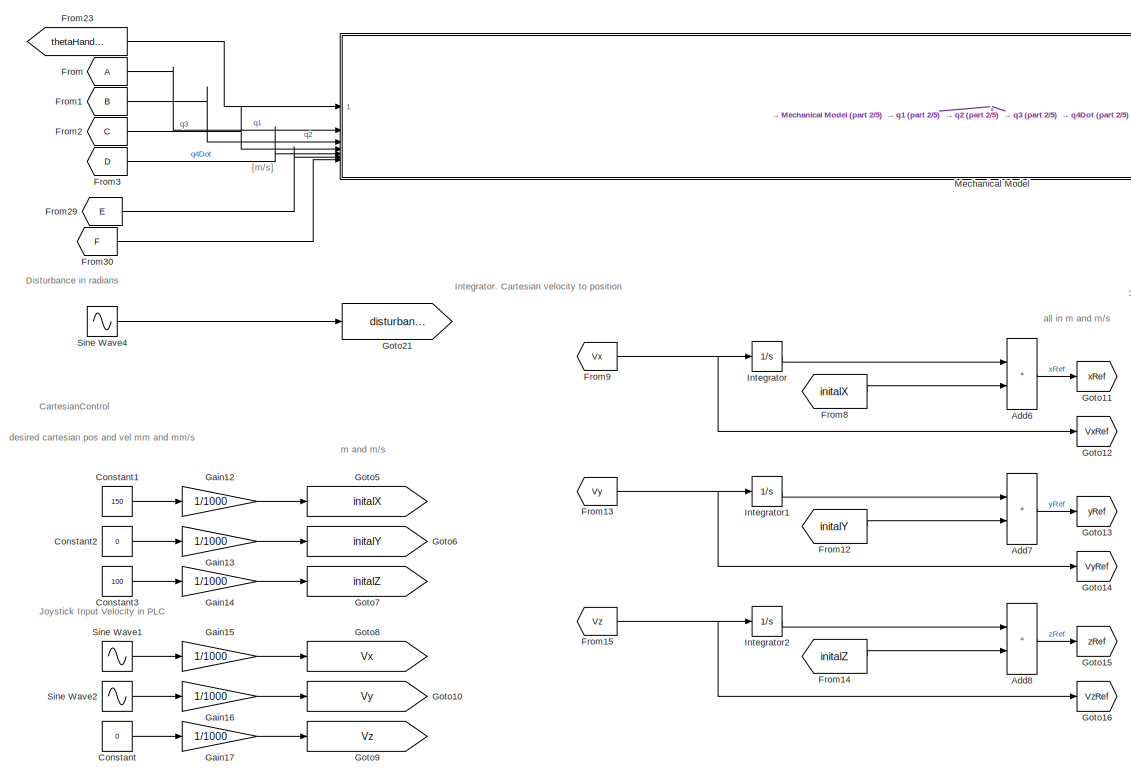
[diagram: root canvas - part 1/5, center side, full height]
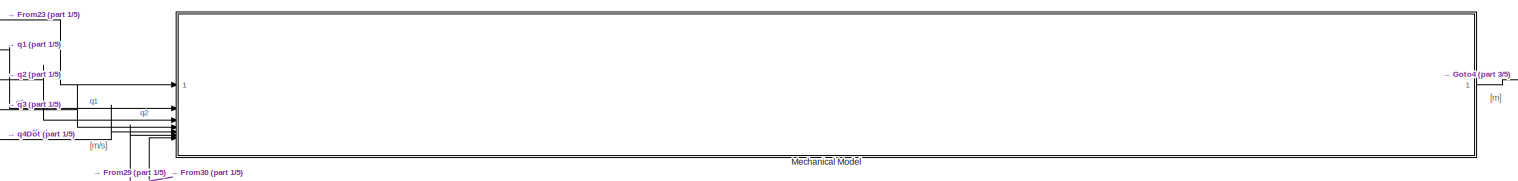
[diagram: root canvas - part 2/5, top right region]
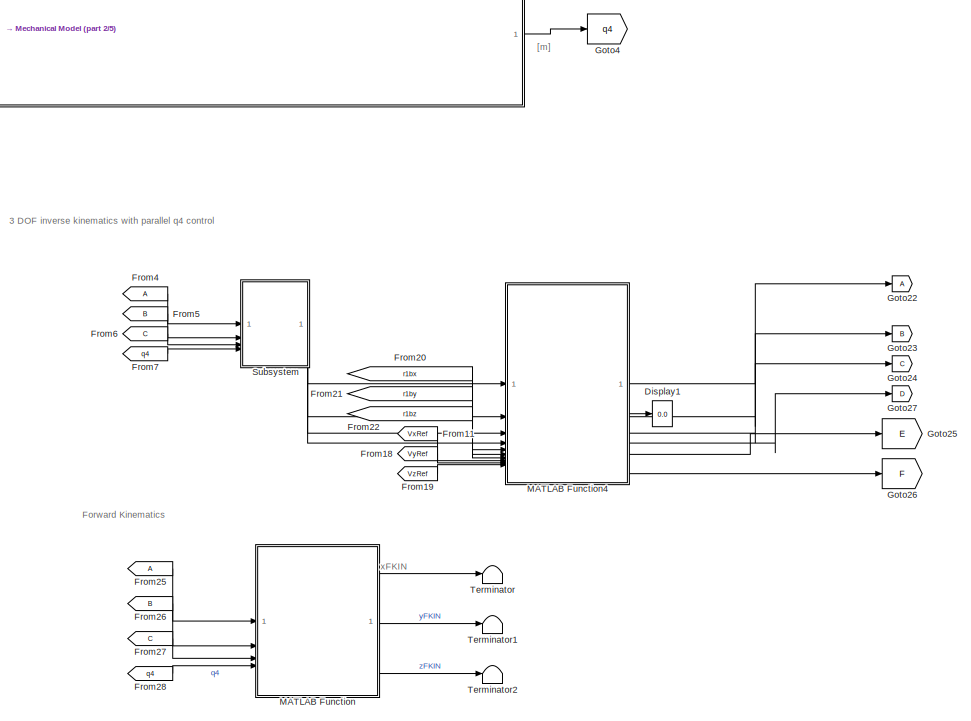
[diagram: root canvas - part 3/5, right side, full height]
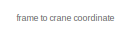
[diagram: root canvas - part 4/5, top left region]
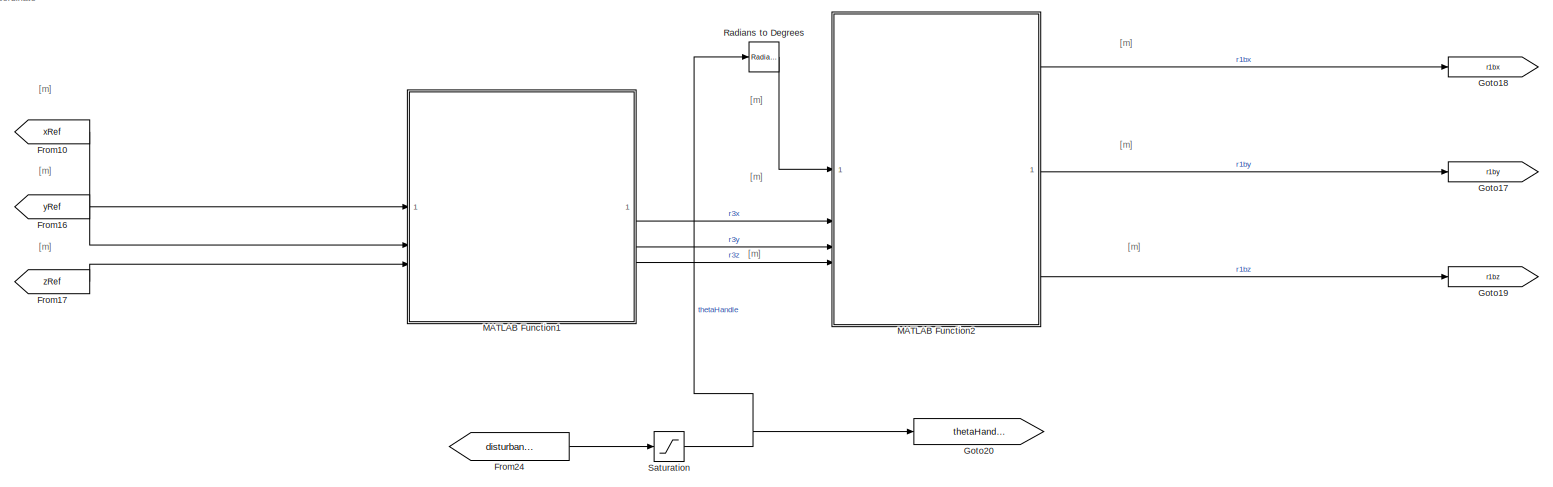
[diagram: root canvas - part 5/5, middle left region]
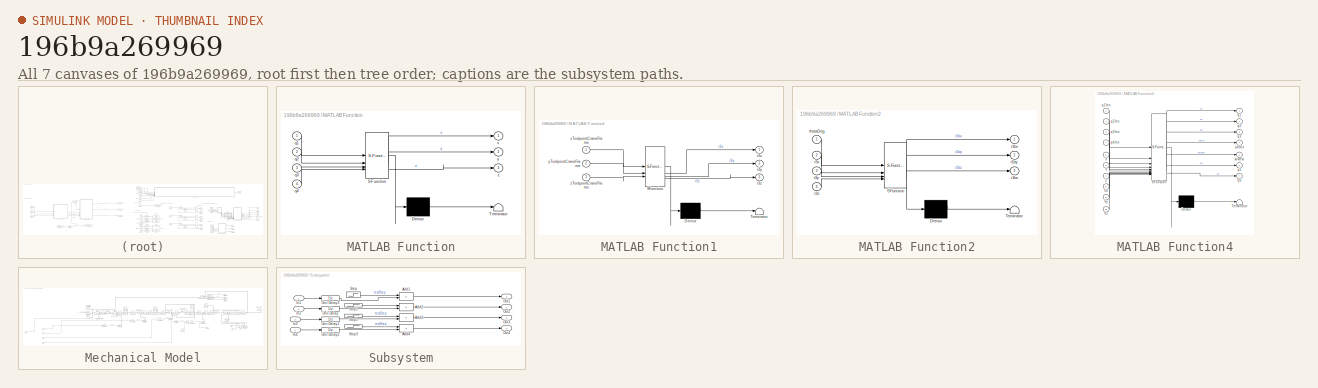
[diagram: thumbnail index - all 7 canvases of the model, root first then tree order]
MODEL slx_196b9a269969
KIND model
CONFIG AbsTol = auto
CONFIG EnableMultiTasking = off
CONFIG FixedStep = 0.001
CONFIG MaxStep = auto
CONFIG MinStep = auto
CONFIG RelTol = 1e-3
CONFIG SampleTimeConstraint = Unconstrained
CONFIG SolverName = FixedStepAuto
CONFIG StartTime = 0.0
CONFIG StopTime = 30
WORKSPACE source: MATLAB code (in-file)
WORKSPACE l1 = 156.9
WORKSPACE l2 = 27.45
WORKSPACE l3 = 179.42
WORKSPACE l4 = 26.86
WORKSPACE l5 = 167.25
WORKSPACE l6 = 1.75
WORKSPACE q1Min = -pi/2  (= -1.57079632679)
WORKSPACE q1Max = pi/2  (= 1.57079632679)
WORKSPACE q2Min = -1.2
WORKSPACE code: q2Max = 0.7;;
WORKSPACE q3Min = 0
WORKSPACE q3Max = 3.2
WORKSPACE q4Min = 0
WORKSPACE q4Max = 200
BLOCK [Sum] Add6
  IconShape = rectangular
BLOCK [Sum] Add7
  IconShape = rectangular
BLOCK [Sum] Add8
  IconShape = rectangular
BLOCK [Constant] Constant
  Value = 0
BLOCK [Constant] Constant1
  Value = 150
BLOCK [Constant] Constant2
  Value = 0
BLOCK [Constant] Constant3
  Value = 100
BLOCK [Display] Display1
  Decimation = 1
BLOCK [From] From
BLOCK [From] From1
  GotoTag = B
BLOCK [From] From10
  GotoTag = xRef
BLOCK [From] From11
  GotoTag = VxRef
BLOCK [From] From12
  GotoTag = initalY
BLOCK [From] From13
  GotoTag = Vy
BLOCK [From] From14
  GotoTag = initalZ
BLOCK [From] From15
  GotoTag = Vz
BLOCK [From] From16
  GotoTag = yRef
BLOCK [From] From17
  GotoTag = zRef
BLOCK [From] From18
  GotoTag = VyRef
BLOCK [From] From19
  GotoTag = VzRef
BLOCK [From] From2
  GotoTag = C
BLOCK [From] From20
  GotoTag = r1bx
BLOCK [From] From21
  GotoTag = r1by
BLOCK [From] From22
  GotoTag = r1bz
BLOCK [From] From23
  GotoTag = thetaHandle
BLOCK [From] From24
  GotoTag = disturbanceTilt
BLOCK [From] From25
BLOCK [From] From26
  GotoTag = B
BLOCK [From] From27
  GotoTag = C
BLOCK [From] From28
  GotoTag = q4
BLOCK [From] From29
  GotoTag = E
BLOCK [From] From3
  GotoTag = D
BLOCK [From] From30
  GotoTag = F
BLOCK [From] From4
BLOCK [From] From5
  GotoTag = B
BLOCK [From] From6
  GotoTag = C
BLOCK [From] From7
  GotoTag = q4
BLOCK [From] From8
  GotoTag = initalX
BLOCK [From] From9
  GotoTag = Vx
BLOCK [Gain] Gain12
  Gain = 1/1000
BLOCK [Gain] Gain13
  Gain = 1/1000
BLOCK [Gain] Gain14
  Gain = 1/1000
BLOCK [Gain] Gain15
  Gain = 1/1000
BLOCK [Gain] Gain16
  Gain = 1/1000
BLOCK [Gain] Gain17
  Gain = 1/1000
BLOCK [Goto] Goto10
  GotoTag = Vy
BLOCK [Goto] Goto11
  GotoTag = xRef
BLOCK [Goto] Goto12
  GotoTag = VxRef
BLOCK [Goto] Goto13
  GotoTag = yRef
BLOCK [Goto] Goto14
  GotoTag = VyRef
BLOCK [Goto] Goto15
  GotoTag = zRef
BLOCK [Goto] Goto16
  GotoTag = VzRef
BLOCK [Goto] Goto17
  GotoTag = r1by
BLOCK [Goto] Goto18
  GotoTag = r1bx
BLOCK [Goto] Goto19
  GotoTag = r1bz
BLOCK [Goto] Goto20
  GotoTag = thetaHandle
BLOCK [Goto] Goto21
  GotoTag = disturbanceTilt
BLOCK [Goto] Goto22
BLOCK [Goto] Goto23
  GotoTag = B
BLOCK [Goto] Goto24
  GotoTag = C
BLOCK [Goto] Goto25
  GotoTag = E
BLOCK [Goto] Goto26
  GotoTag = F
BLOCK [Goto] Goto27
  GotoTag = D
BLOCK [Goto] Goto4
  GotoTag = q4
BLOCK [Goto] Goto5
  GotoTag = initalX
BLOCK [Goto] Goto6
  GotoTag = initalY
BLOCK [Goto] Goto7
  GotoTag = initalZ
BLOCK [Goto] Goto8
  GotoTag = Vx
BLOCK [Goto] Goto9
  GotoTag = Vz
BLOCK [Integrator] Integrator
BLOCK [Integrator] Integrator1
BLOCK [Integrator] Integrator2
BLOCK [SubSystem] MATLAB Function
  ErrorFcn = Stateflow.Translate.translate
  LibrarySourceBlock = simulink/User-Defined\nFunctions/MATLAB Function
  PermitHierarchicalResolution = ExplicitOnly
  SFBlockType = MATLAB Function
  TreatAsAtomicUnit = on
BLOCK [Demux] MATLAB Function/ Demux 
  Outputs = 1
BLOCK [S-Function] MATLAB Function/ SFunction 
  EnableBusSupport = on
  FunctionName = sf_sfun
  PortCounts = [4 4]
  SFcnIsStateOwnerBlock = off
  SFunctionDeploymentMode = off
  Tag = Stateflow S-Function 2
BLOCK [Terminator] MATLAB Function/ Terminator 
BLOCK [Inport] MATLAB Function/q1
BLOCK [Inport] MATLAB Function/q2
  Port = 2
BLOCK [Inport] MATLAB Function/q3
  Port = 3
BLOCK [Inport] MATLAB Function/q4
  Port = 4
BLOCK [Outport] MATLAB Function/x
BLOCK [Outport] MATLAB Function/y
  Port = 2
BLOCK [Outport] MATLAB Function/z
  Port = 3
BLOCK [SubSystem] MATLAB Function1
  ErrorFcn = Stateflow.Translate.translate
  LibrarySourceBlock = simulink/User-Defined\nFunctions/MATLAB Function
  PermitHierarchicalResolution = ExplicitOnly
  SFBlockType = MATLAB Function
  TreatAsAtomicUnit = on
BLOCK [Demux] MATLAB Function1/ Demux 
  Outputs = 1
BLOCK [S-Function] MATLAB Function1/ SFunction 
  EnableBusSupport = on
  FunctionName = sf_sfun
  PortCounts = [3 4]
  SFcnIsStateOwnerBlock = off
  SFunctionDeploymentMode = off
  Tag = Stateflow S-Function 1
BLOCK [Terminator] MATLAB Function1/ Terminator 
BLOCK [Outport] MATLAB Function1/r3x
BLOCK [Outport] MATLAB Function1/r3y
  Port = 2
BLOCK [Outport] MATLAB Function1/r3z
  Port = 3
BLOCK [Inport] MATLAB Function1/xToolpointCraneFrame
BLOCK [Inport] MATLAB Function1/yToolpointCraneFrame
  Port = 2
BLOCK [Inport] MATLAB Function1/zToolpointCraneFrame
  Port = 3
BLOCK [SubSystem] MATLAB Function2
  ErrorFcn = Stateflow.Translate.translate
  LibrarySourceBlock = simulink/User-Defined\nFunctions/MATLAB Function
  PermitHierarchicalResolution = ExplicitOnly
  SFBlockType = MATLAB Function
  TreatAsAtomicUnit = on
BLOCK [Demux] MATLAB Function2/ Demux 
  Outputs = 1
BLOCK [S-Function] MATLAB Function2/ SFunction 
  EnableBusSupport = on
  FunctionName = sf_sfun
  PortCounts = [4 4]
  SFcnIsStateOwnerBlock = off
  SFunctionDeploymentMode = off
  Tag = Stateflow S-Function 3
BLOCK [Terminator] MATLAB Function2/ Terminator 
BLOCK [Outport] MATLAB Function2/r1bx
BLOCK [Outport] MATLAB Function2/r1by
  Port = 2
BLOCK [Outport] MATLAB Function2/r1bz
  Port = 3
BLOCK [Inport] MATLAB Function2/r3x
  Port = 2
BLOCK [Inport] MATLAB Function2/r3y
  Port = 3
BLOCK [Inport] MATLAB Function2/r3z
  Port = 4
BLOCK [Inport] MATLAB Function2/thetaDeg
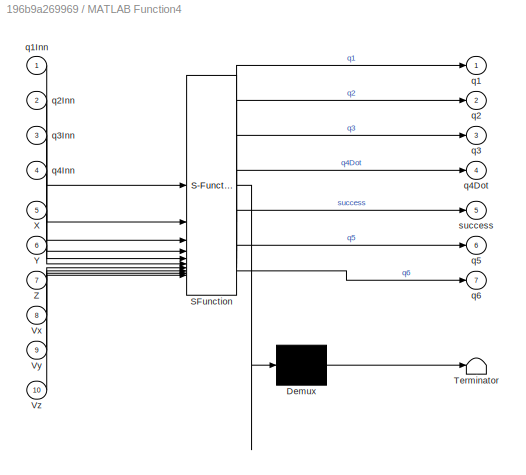
BLOCK [SubSystem] MATLAB Function4
  ErrorFcn = Stateflow.Translate.translate
  LibrarySourceBlock = simulink/User-Defined\nFunctions/MATLAB Function
  MinAlgLoopOccurrences = on
  PermitHierarchicalResolution = ExplicitOnly
  SFBlockType = MATLAB Function
  TreatAsAtomicUnit = on
BLOCK [Demux] MATLAB Function4/ Demux 
  Outputs = 1
BLOCK [S-Function] MATLAB Function4/ SFunction 
  EnableBusSupport = on
  FunctionName = sf_sfun
  PortCounts = [10 8]
  SFcnIsStateOwnerBlock = off
  SFunctionDeploymentMode = off
  Tag = Stateflow S-Function 5
BLOCK [Terminator] MATLAB Function4/ Terminator 
BLOCK [Inport] MATLAB Function4/Vx
  Port = 8
BLOCK [Inport] MATLAB Function4/Vy
  Port = 9
BLOCK [Inport] MATLAB Function4/Vz
  Port = 10
BLOCK [Inport] MATLAB Function4/X
  Port = 5
BLOCK [Inport] MATLAB Function4/Y
  Port = 6
BLOCK [Inport] MATLAB Function4/Z
  Port = 7
BLOCK [Outport] MATLAB Function4/q1
BLOCK [Inport] MATLAB Function4/q1Inn
BLOCK [Outport] MATLAB Function4/q2
  Port = 2
BLOCK [Inport] MATLAB Function4/q2Inn
  Port = 2
BLOCK [Outport] MATLAB Function4/q3
  Port = 3
BLOCK [Inport] MATLAB Function4/q3Inn
  Port = 3
BLOCK [Outport] MATLAB Function4/q4Dot
  Port = 4
BLOCK [Inport] MATLAB Function4/q4Inn
  Port = 4
BLOCK [Outport] MATLAB Function4/q5
  Port = 6
BLOCK [Outport] MATLAB Function4/q6
  Port = 7
BLOCK [Outport] MATLAB Function4/success
  Port = 5
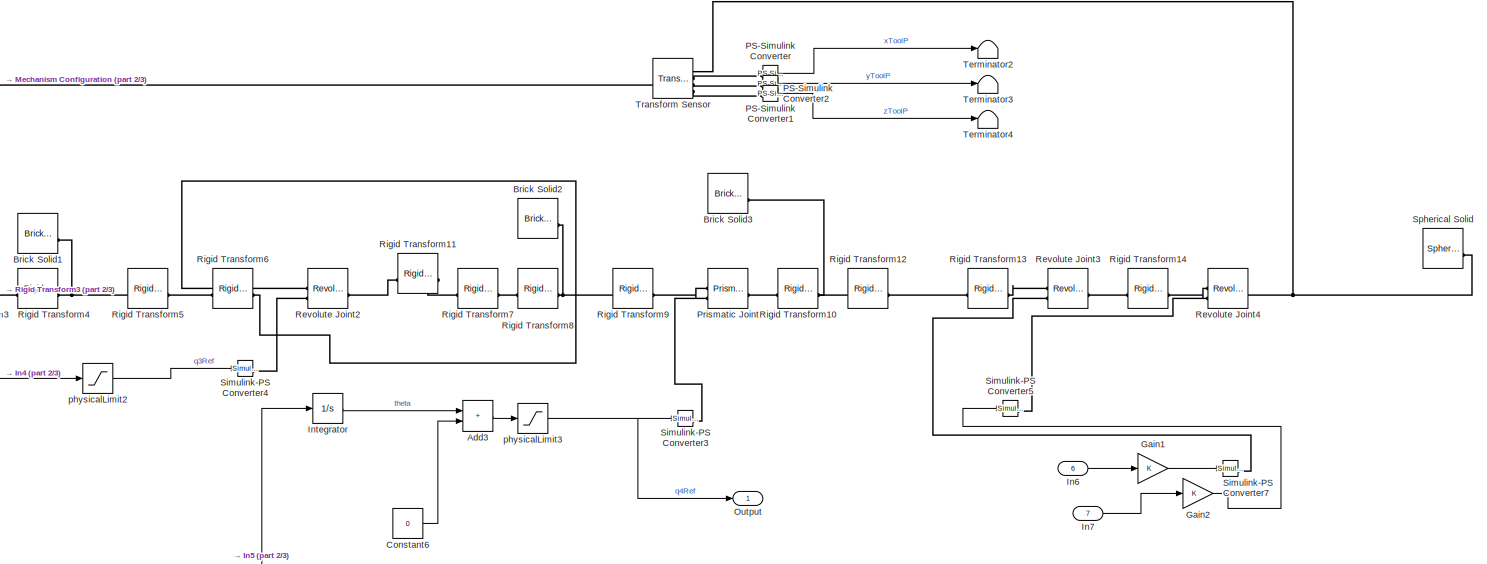
[diagram: Mechanical Model - part 1/3, middle right region]
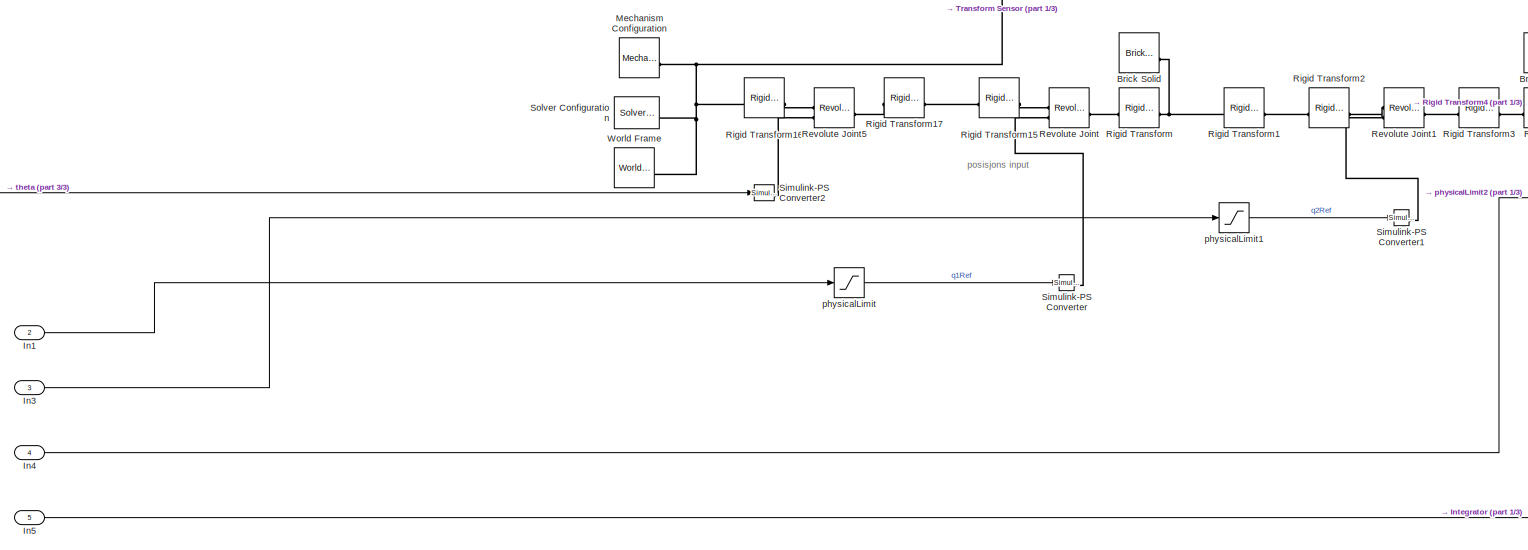
[diagram: Mechanical Model - part 2/3, middle left region]
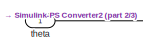
[diagram: Mechanical Model - part 3/3, bottom left region]
BLOCK [SubSystem] Mechanical Model
BLOCK [Sum] Mechanical Model/Add3
  IconShape = rectangular
BLOCK [Reference] Mechanical Model/Brick Solid  REF=sm_lib/Body Elements/Brick Solid
  SourceBlock = sm_lib/Body Elements/Brick Solid
  SourceType = Brick Solid
BLOCK [Reference] Mechanical Model/Brick Solid1  REF=sm_lib/Body Elements/Brick Solid
  SourceBlock = sm_lib/Body Elements/Brick Solid
  SourceType = Brick Solid
BLOCK [Reference] Mechanical Model/Brick Solid2  REF=sm_lib/Body Elements/Brick Solid
  SourceBlock = sm_lib/Body Elements/Brick Solid
  SourceType = Brick Solid
BLOCK [Reference] Mechanical Model/Brick Solid3  REF=sm_lib/Body Elements/Brick Solid
  SourceBlock = sm_lib/Body Elements/Brick Solid
  SourceType = Brick Solid
BLOCK [Constant] Mechanical Model/Constant6
  Value = 0
BLOCK [Gain] Mechanical Model/Gain1
BLOCK [Gain] Mechanical Model/Gain2
BLOCK [Inport] Mechanical Model/In1
  Port = 2
BLOCK [Inport] Mechanical Model/In3
  Port = 3
BLOCK [Inport] Mechanical Model/In4
  Port = 4
BLOCK [Inport] Mechanical Model/In5
  Port = 5
BLOCK [Inport] Mechanical Model/In6
  Port = 6
BLOCK [Inport] Mechanical Model/In7
  Port = 7
BLOCK [Integrator] Mechanical Model/Integrator
BLOCK [Reference] Mechanical Model/Mechanism Configuration  REF=sm_lib/Utilities/Mechanism
Configuration
  SourceBlock = sm_lib/Utilities/Mechanism\nConfiguration
  SourceType = Mechanism\nConfiguration
BLOCK [Outport] Mechanical Model/Output
BLOCK [Reference] Mechanical Model/PS-Simulink Converter  REF=nesl_utility/PS-Simulink
Converter
  SourceBlock = nesl_utility/PS-Simulink\nConverter
  SourceType = PS-Simulink\nConverter
BLOCK [Reference] Mechanical Model/PS-Simulink Converter1  REF=nesl_utility/PS-Simulink
Converter
  SourceBlock = nesl_utility/PS-Simulink\nConverter
  SourceType = PS-Simulink\nConverter
BLOCK [Reference] Mechanical Model/PS-Simulink Converter2  REF=nesl_utility/PS-Simulink
Converter
  SourceBlock = nesl_utility/PS-Simulink\nConverter
  SourceType = PS-Simulink\nConverter
BLOCK [Reference] Mechanical Model/Prismatic Joint  REF=sm_lib/Joints/Prismatic
Joint
  SourceBlock = sm_lib/Joints/Prismatic\nJoint
  SourceType = Prismatic\nJoint
BLOCK [Reference] Mechanical Model/Revolute Joint  REF=sm_lib/Joints/Revolute Joint
  SourceBlock = sm_lib/Joints/Revolute Joint
  SourceType = Revolute Joint
BLOCK [Reference] Mechanical Model/Revolute Joint1  REF=sm_lib/Joints/Revolute Joint
  SourceBlock = sm_lib/Joints/Revolute Joint
  SourceType = Revolute Joint
BLOCK [Reference] Mechanical Model/Revolute Joint2  REF=sm_lib/Joints/Revolute Joint
  SourceBlock = sm_lib/Joints/Revolute Joint
  SourceType = Revolute Joint
BLOCK [Reference] Mechanical Model/Revolute Joint3  REF=sm_lib/Joints/Revolute Joint
  SourceBlock = sm_lib/Joints/Revolute Joint
  SourceType = Revolute Joint
BLOCK [Reference] Mechanical Model/Revolute Joint4  REF=sm_lib/Joints/Revolute Joint
  SourceBlock = sm_lib/Joints/Revolute Joint
  SourceType = Revolute Joint
BLOCK [Reference] Mechanical Model/Revolute Joint5  REF=sm_lib/Joints/Revolute Joint
  SourceBlock = sm_lib/Joints/Revolute Joint
  SourceType = Revolute Joint
BLOCK [Reference] Mechanical Model/Rigid Transform  REF=sm_lib/Frames and
Transforms/Rigid
Transform
  SourceBlock = sm_lib/Frames and\nTransforms/Rigid\nTransform
  SourceType = Rigid\nTransform
BLOCK [Reference] Mechanical Model/Rigid Transform1  REF=sm_lib/Frames and
Transforms/Rigid
Transform
  SourceBlock = sm_lib/Frames and\nTransforms/Rigid\nTransform
  SourceType = Rigid\nTransform
BLOCK [Reference] Mechanical Model/Rigid Transform10  REF=sm_lib/Frames and
Transforms/Rigid
Transform
  SourceBlock = sm_lib/Frames and\nTransforms/Rigid\nTransform
  SourceType = Rigid\nTransform
BLOCK [Reference] Mechanical Model/Rigid Transform11  REF=sm_lib/Frames and
Transforms/Rigid
Transform
  SourceBlock = sm_lib/Frames and\nTransforms/Rigid\nTransform
  SourceType = Rigid\nTransform
BLOCK [Reference] Mechanical Model/Rigid Transform12  REF=sm_lib/Frames and
Transforms/Rigid
Transform
  SourceBlock = sm_lib/Frames and\nTransforms/Rigid\nTransform
  SourceType = Rigid\nTransform
BLOCK [Reference] Mechanical Model/Rigid Transform13  REF=sm_lib/Frames and
Transforms/Rigid
Transform
  SourceBlock = sm_lib/Frames and\nTransforms/Rigid\nTransform
  SourceType = Rigid\nTransform
BLOCK [Reference] Mechanical Model/Rigid Transform14  REF=sm_lib/Frames and
Transforms/Rigid
Transform
  SourceBlock = sm_lib/Frames and\nTransforms/Rigid\nTransform
  SourceType = Rigid\nTransform
BLOCK [Reference] Mechanical Model/Rigid Transform15  REF=sm_lib/Frames and
Transforms/Rigid
Transform
  SourceBlock = sm_lib/Frames and\nTransforms/Rigid\nTransform
  SourceType = Rigid\nTransform
BLOCK [Reference] Mechanical Model/Rigid Transform16  REF=sm_lib/Frames and
Transforms/Rigid
Transform
  SourceBlock = sm_lib/Frames and\nTransforms/Rigid\nTransform
  SourceType = Rigid\nTransform
BLOCK [Reference] Mechanical Model/Rigid Transform17  REF=sm_lib/Frames and
Transforms/Rigid
Transform
  SourceBlock = sm_lib/Frames and\nTransforms/Rigid\nTransform
  SourceType = Rigid\nTransform
BLOCK [Reference] Mechanical Model/Rigid Transform2  REF=sm_lib/Frames and
Transforms/Rigid
Transform
  SourceBlock = sm_lib/Frames and\nTransforms/Rigid\nTransform
  SourceType = Rigid\nTransform
BLOCK [Reference] Mechanical Model/Rigid Transform3  REF=sm_lib/Frames and
Transforms/Rigid
Transform
  SourceBlock = sm_lib/Frames and\nTransforms/Rigid\nTransform
  SourceType = Rigid\nTransform
BLOCK [Reference] Mechanical Model/Rigid Transform4  REF=sm_lib/Frames and
Transforms/Rigid
Transform
  SourceBlock = sm_lib/Frames and\nTransforms/Rigid\nTransform
  SourceType = Rigid\nTransform
BLOCK [Reference] Mechanical Model/Rigid Transform5  REF=sm_lib/Frames and
Transforms/Rigid
Transform
  SourceBlock = sm_lib/Frames and\nTransforms/Rigid\nTransform
  SourceType = Rigid\nTransform
BLOCK [Reference] Mechanical Model/Rigid Transform6  REF=sm_lib/Frames and
Transforms/Rigid
Transform
  SourceBlock = sm_lib/Frames and\nTransforms/Rigid\nTransform
  SourceType = Rigid\nTransform
BLOCK [Reference] Mechanical Model/Rigid Transform7  REF=sm_lib/Frames and
Transforms/Rigid
Transform
  SourceBlock = sm_lib/Frames and\nTransforms/Rigid\nTransform
  SourceType = Rigid\nTransform
BLOCK [Reference] Mechanical Model/Rigid Transform8  REF=sm_lib/Frames and
Transforms/Rigid
Transform
  SourceBlock = sm_lib/Frames and\nTransforms/Rigid\nTransform
  SourceType = Rigid\nTransform
BLOCK [Reference] Mechanical Model/Rigid Transform9  REF=sm_lib/Frames and
Transforms/Rigid
Transform
  SourceBlock = sm_lib/Frames and\nTransforms/Rigid\nTransform
  SourceType = Rigid\nTransform
BLOCK [Reference] Mechanical Model/Simulink-PS Converter  REF=nesl_utility/Simulink-PS
Converter
  SourceBlock = nesl_utility/Simulink-PS\nConverter
  SourceType = Simulink-PS\nConverter
BLOCK [Reference] Mechanical Model/Simulink-PS Converter1  REF=nesl_utility/Simulink-PS
Converter
  SourceBlock = nesl_utility/Simulink-PS\nConverter
  SourceType = Simulink-PS\nConverter
BLOCK [Reference] Mechanical Model/Simulink-PS Converter2  REF=nesl_utility/Simulink-PS
Converter
  SourceBlock = nesl_utility/Simulink-PS\nConverter
  SourceType = Simulink-PS\nConverter
BLOCK [Reference] Mechanical Model/Simulink-PS Converter3  REF=nesl_utility/Simulink-PS
Converter
  SourceBlock = nesl_utility/Simulink-PS\nConverter
  SourceType = Simulink-PS\nConverter
BLOCK [Reference] Mechanical Model/Simulink-PS Converter4  REF=nesl_utility/Simulink-PS
Converter
  SourceBlock = nesl_utility/Simulink-PS\nConverter
  SourceType = Simulink-PS\nConverter
BLOCK [Reference] Mechanical Model/Simulink-PS Converter5  REF=nesl_utility/Simulink-PS
Converter
  SourceBlock = nesl_utility/Simulink-PS\nConverter
  SourceType = Simulink-PS\nConverter
BLOCK [Reference] Mechanical Model/Simulink-PS Converter7  REF=nesl_utility/Simulink-PS
Converter
  SourceBlock = nesl_utility/Simulink-PS\nConverter
  SourceType = Simulink-PS\nConverter
BLOCK [Reference] Mechanical Model/Solver Configuration  REF=nesl_utility/Solver
Configuration
  SourceBlock = nesl_utility/Solver\nConfiguration
  SourceType = Solver\nConfiguration
BLOCK [Reference] Mechanical Model/Spherical Solid  REF=sm_lib/Body Elements/Spherical Solid
  SourceBlock = sm_lib/Body Elements/Spherical Solid
  SourceType = Spherical Solid
BLOCK [Terminator] Mechanical Model/Terminator2
BLOCK [Terminator] Mechanical Model/Terminator3
BLOCK [Terminator] Mechanical Model/Terminator4
BLOCK [Reference] Mechanical Model/Transform Sensor  REF=sm_lib/Frames and
Transforms/Transform
Sensor
  SourceBlock = sm_lib/Frames and\nTransforms/Transform\nSensor
  SourceType = Transform\nSensor
BLOCK [Reference] Mechanical Model/World Frame  REF=sm_lib/Frames and
Transforms/World Frame
  SourceBlock = sm_lib/Frames and\nTransforms/World Frame
  SourceType = World Frame
BLOCK [Saturate] Mechanical Model/physicalLimit
  LowerLimit = q1Min
  UpperLimit = q1Max
BLOCK [Saturate] Mechanical Model/physicalLimit1
  LowerLimit = q2Min
  UpperLimit = q2Max
BLOCK [Saturate] Mechanical Model/physicalLimit2
  LowerLimit = q3Min
  UpperLimit = q3Max
BLOCK [Saturate] Mechanical Model/physicalLimit3
  LowerLimit = q4Min/1000
  UpperLimit = q4Max/1000
BLOCK [Inport] Mechanical Model/theta
BLOCK [Reference] Radians to Degrees  REF=simulink_extras/Transformations/Radians
to Degrees
  SourceBlock = simulink_extras/Transformations/Radians\nto Degrees
  SourceType = RadiansToDegrees
BLOCK [Saturate] Saturation
  LowerLimit = 0
  UpperLimit = 0.26
BLOCK [Sin] Sine Wave1
  Amplitude = 50
  Frequency = .3
  SampleTime = 0
BLOCK [Sin] Sine Wave2
  Amplitude = 20
  Frequency = .5
  SampleTime = 0
BLOCK [Sin] Sine Wave4
  Amplitude = 0.2
  SampleTime = 0
BLOCK [SubSystem] Subsystem
BLOCK [Sum] Subsystem/Add1
  IconShape = rectangular
BLOCK [Sum] Subsystem/Add2
  IconShape = rectangular
BLOCK [Sum] Subsystem/Add3
  IconShape = rectangular
BLOCK [Sum] Subsystem/Add4
  IconShape = rectangular
BLOCK [Inport] Subsystem/In1
BLOCK [Inport] Subsystem/In2
  Port = 2
BLOCK [Inport] Subsystem/In3
  Port = 3
BLOCK [Inport] Subsystem/In4
  Port = 4
BLOCK [Outport] Subsystem/Out1
BLOCK [Outport] Subsystem/Out2
  Port = 2
BLOCK [Outport] Subsystem/Out3
  Port = 3
BLOCK [Outport] Subsystem/Out4
  Port = 4
BLOCK [Step] Subsystem/Step
  After = 0
  SampleTime = 0
  Time = 0.0001
BLOCK [Step] Subsystem/Step1
  After = 0
  Before = -pi/4
  SampleTime = 0
  Time = 0.0001
BLOCK [Step] Subsystem/Step2
  After = 0
  Before = pi/2
  SampleTime = 0
  Time = 0.0001
BLOCK [Step] Subsystem/Step3
  After = 0
  Before = 0.06
  SampleTime = 0
  Time = 0.0001
BLOCK [UnitDelay] Subsystem/Unit Delay
  HasFrameUpgradeWarning = on
  SampleTime = -1
BLOCK [UnitDelay] Subsystem/Unit Delay1
  HasFrameUpgradeWarning = on
  InitialCondition = 1
  SampleTime = -1
BLOCK [UnitDelay] Subsystem/Unit Delay2
  HasFrameUpgradeWarning = on
  SampleTime = -1
BLOCK [UnitDelay] Subsystem/Unit Delay3
  HasFrameUpgradeWarning = on
  SampleTime = -1
BLOCK [Terminator] Terminator
BLOCK [Terminator] Terminator1
BLOCK [Terminator] Terminator2
ANNOTATION (root): 3 DOF inverse kinematics with parallel q4 control
ANNOTATION (root): CartesianControl
ANNOTATION (root): Disturbance in radians
ANNOTATION (root): Forward Kinematics
ANNOTATION (root): Integrator. Cartesian velocity to position
ANNOTATION (root): Joystick Input Velocity in PLC
ANNOTATION (root): [m/s]
ANNOTATION (root): [m]
ANNOTATION (root): all in m and m/s
ANNOTATION (root): desired cartesian pos and vel mm and mm/s
ANNOTATION (root): frame to crane coordinate
ANNOTATION (root): m and m/s
ANNOTATION (root): xFKIN
ANNOTATION Mechanical Model: posisjons input
LINE Add6:1 -> Goto11:1
LINE Add7:1 -> Goto13:1
LINE Add8:1 -> Goto15:1
LINE Constant1:1 -> Gain12:1
LINE Constant2:1 -> Gain13:1
LINE Constant3:1 -> Gain14:1
LINE Constant:1 -> Gain17:1
LINE From10:1 -> MATLAB Function1:1
LINE From11:1 -> MATLAB Function4:8
LINE From12:1 -> Add7:2
NET From13:1 -> Goto14:1, Integrator1:1
LINE From14:1 -> Add8:2
NET From15:1 -> Goto16:1, Integrator2:1
LINE From16:1 -> MATLAB Function1:2
LINE From17:1 -> MATLAB Function1:3
LINE From18:1 -> MATLAB Function4:9
LINE From19:1 -> MATLAB Function4:10
LINE From1:1 -> Mechanical Model:3
LINE From20:1 -> MATLAB Function4:5
LINE From21:1 -> MATLAB Function4:6
LINE From22:1 -> MATLAB Function4:7
LINE From23:1 -> Mechanical Model:1
LINE From24:1 -> Saturation:1
LINE From25:1 -> MATLAB Function:1
LINE From26:1 -> MATLAB Function:2
LINE From27:1 -> MATLAB Function:3
LINE From28:1 -> MATLAB Function:4
LINE From29:1 -> Mechanical Model:6
LINE From2:1 -> Mechanical Model:4
LINE From30:1 -> Mechanical Model:7
LINE From3:1 -> Mechanical Model:5
LINE From4:1 -> Subsystem:1
LINE From5:1 -> Subsystem:2
LINE From6:1 -> Subsystem:3
LINE From7:1 -> Subsystem:4
LINE From8:1 -> Add6:2
NET From9:1 -> Goto12:1, Integrator:1
LINE From:1 -> Mechanical Model:2
LINE Gain12:1 -> Goto5:1
LINE Gain13:1 -> Goto6:1
LINE Gain14:1 -> Goto7:1
LINE Gain15:1 -> Goto8:1
LINE Gain16:1 -> Goto10:1
LINE Gain17:1 -> Goto9:1
LINE Integrator1:1 -> Add7:1
LINE Integrator2:1 -> Add8:1
LINE Integrator:1 -> Add6:1
LINE MATLAB Function1:1 -> MATLAB Function2:2
LINE MATLAB Function1:2 -> MATLAB Function2:3
LINE MATLAB Function1:3 -> MATLAB Function2:4
LINE MATLAB Function2:1 -> Goto18:1
LINE MATLAB Function2:2 -> Goto17:1
LINE MATLAB Function2:3 -> Goto19:1
LINE MATLAB Function4:1 -> Goto22:1
LINE MATLAB Function4:2 -> Goto23:1
LINE MATLAB Function4:3 -> Goto24:1
LINE MATLAB Function4:4 -> Goto27:1
LINE MATLAB Function4:5 -> Display1:1
LINE MATLAB Function4:6 -> Goto25:1
LINE MATLAB Function4:7 -> Goto26:1
LINE MATLAB Function:1 -> Terminator:1
LINE MATLAB Function:2 -> Terminator1:1
LINE MATLAB Function:3 -> Terminator2:1
LINE Mechanical Model/Add3:1 -> Mechanical Model/physicalLimit3:1
LINE Mechanical Model/Constant6:1 -> Mechanical Model/Add3:2
LINE Mechanical Model/Gain1:1 -> Mechanical Model/Simulink-PS Converter7:1
LINE Mechanical Model/Gain2:1 -> Mechanical Model/Simulink-PS Converter5:1
LINE Mechanical Model/In1:1 -> Mechanical Model/physicalLimit:1
LINE Mechanical Model/In3:1 -> Mechanical Model/physicalLimit1:1
LINE Mechanical Model/In4:1 -> Mechanical Model/physicalLimit2:1
LINE Mechanical Model/In5:1 -> Mechanical Model/Integrator:1
LINE Mechanical Model/In6:1 -> Mechanical Model/Gain1:1
LINE Mechanical Model/In7:1 -> Mechanical Model/Gain2:1
LINE Mechanical Model/Integrator:1 -> Mechanical Model/Add3:1
LINE Mechanical Model/PS-Simulink Converter1:1 -> Mechanical Model/Terminator3:1
LINE Mechanical Model/PS-Simulink Converter2:1 -> Mechanical Model/Terminator4:1
LINE Mechanical Model/PS-Simulink Converter:1 -> Mechanical Model/Terminator2:1
LINE Mechanical Model/physicalLimit1:1 -> Mechanical Model/Simulink-PS Converter1:1
LINE Mechanical Model/physicalLimit2:1 -> Mechanical Model/Simulink-PS Converter4:1
NET Mechanical Model/physicalLimit3:1 -> Mechanical Model/Output:1, Mechanical Model/Simulink-PS Converter3:1
LINE Mechanical Model/physicalLimit:1 -> Mechanical Model/Simulink-PS Converter:1
LINE Mechanical Model/theta:1 -> Mechanical Model/Simulink-PS Converter2:1
LINE Mechanical Model:1 -> Goto4:1
LINE Radians to Degrees:1 -> MATLAB Function2:1
NET Saturation:1 -> Goto20:1, Radians to Degrees:1
LINE Sine Wave1:1 -> Gain15:1
LINE Sine Wave2:1 -> Gain16:1
LINE Sine Wave4:1 -> Goto21:1
LINE Subsystem/Add1:1 -> Subsystem/Out1:1
LINE Subsystem/Add2:1 -> Subsystem/Out2:1
LINE Subsystem/Add3:1 -> Subsystem/Out3:1
LINE Subsystem/Add4:1 -> Subsystem/Out4:1
LINE Subsystem/In1:1 -> Subsystem/Unit Delay3:1
LINE Subsystem/In2:1 -> Subsystem/Unit Delay:1
LINE Subsystem/In3:1 -> Subsystem/Unit Delay1:1
LINE Subsystem/In4:1 -> Subsystem/Unit Delay2:1
LINE Subsystem/Step1:1 -> Subsystem/Add2:1
LINE Subsystem/Step2:1 -> Subsystem/Add3:1
LINE Subsystem/Step3:1 -> Subsystem/Add4:1
LINE Subsystem/Step:1 -> Subsystem/Add1:1
LINE Subsystem/Unit Delay1:1 -> Subsystem/Add3:2
LINE Subsystem/Unit Delay2:1 -> Subsystem/Add4:2
LINE Subsystem/Unit Delay3:1 -> Subsystem/Add1:2
LINE Subsystem/Unit Delay:1 -> Subsystem/Add2:2
LINE Subsystem:1 -> MATLAB Function4:1
LINE Subsystem:2 -> MATLAB Function4:2
LINE Subsystem:3 -> MATLAB Function4:3
LINE Subsystem:4 -> MATLAB Function4:4
PNET net1: Mechanical Model/Brick Solid1:RConn1 -- Mechanical Model/Rigid Transform4:RConn1 -- Mechanical Model/Rigid Transform5:LConn1
PNET net2: Mechanical Model/Brick Solid2:RConn1 -- Mechanical Model/Rigid Transform8:RConn1 -- Mechanical Model/Rigid Transform9:LConn1
PNET net3: Mechanical Model/Brick Solid3:RConn1 -- Mechanical Model/Rigid Transform10:RConn1 -- Mechanical Model/Rigid Transform12:LConn1
PNET net4: Mechanical Model/Brick Solid:RConn1 -- Mechanical Model/Rigid Transform1:LConn1 -- Mechanical Model/Rigid Transform:RConn1
PNET net5: Mechanical Model/Mechanism Configuration:RConn1 -- Mechanical Model/Rigid Transform16:LConn1 -- Mechanical Model/Solver Configuration:RConn1 -- Mechanical Model/Transform Sensor:LConn1 -- Mechanical Model/World Frame:RConn1
PLINE Mechanical Model/PS-Simulink Converter1:LConn1 -- Mechanical Model/Transform Sensor:RConn3
PLINE Mechanical Model/PS-Simulink Converter2:LConn1 -- Mechanical Model/Transform Sensor:RConn4
PLINE Mechanical Model/PS-Simulink Converter:LConn1 -- Mechanical Model/Transform Sensor:RConn2
PLINE Mechanical Model/Prismatic Joint:LConn1 -- Mechanical Model/Rigid Transform9:RConn1
PLINE Mechanical Model/Prismatic Joint:LConn2 -- Mechanical Model/Simulink-PS Converter3:RConn1
PLINE Mechanical Model/Prismatic Joint:RConn1 -- Mechanical Model/Rigid Transform10:LConn1
PLINE Mechanical Model/Revolute Joint1:LConn1 -- Mechanical Model/Rigid Transform2:RConn1
PLINE Mechanical Model/Revolute Joint1:LConn2 -- Mechanical Model/Simulink-PS Converter1:RConn1
PLINE Mechanical Model/Revolute Joint1:RConn1 -- Mechanical Model/Rigid Transform3:LConn1
PLINE Mechanical Model/Revolute Joint2:LConn1 -- Mechanical Model/Rigid Transform6:RConn1
PLINE Mechanical Model/Revolute Joint2:LConn2 -- Mechanical Model/Simulink-PS Converter4:RConn1
PLINE Mechanical Model/Revolute Joint2:RConn1 -- Mechanical Model/Rigid Transform11:LConn1
PLINE Mechanical Model/Revolute Joint3:LConn1 -- Mechanical Model/Rigid Transform13:RConn1
PLINE Mechanical Model/Revolute Joint3:LConn2 -- Mechanical Model/Simulink-PS Converter7:RConn1
PLINE Mechanical Model/Revolute Joint3:RConn1 -- Mechanical Model/Rigid Transform14:LConn1
PLINE Mechanical Model/Revolute Joint4:LConn1 -- Mechanical Model/Rigid Transform14:RConn1
PLINE Mechanical Model/Revolute Joint4:LConn2 -- Mechanical Model/Simulink-PS Converter5:RConn1
PNET net6: Mechanical Model/Revolute Joint4:RConn1 -- Mechanical Model/Spherical Solid:RConn1 -- Mechanical Model/Transform Sensor:RConn1
PLINE Mechanical Model/Revolute Joint5:LConn1 -- Mechanical Model/Rigid Transform16:RConn1
PLINE Mechanical Model/Revolute Joint5:LConn2 -- Mechanical Model/Simulink-PS Converter2:RConn1
PLINE Mechanical Model/Revolute Joint5:RConn1 -- Mechanical Model/Rigid Transform17:LConn1
PLINE Mechanical Model/Revolute Joint:LConn1 -- Mechanical Model/Rigid Transform15:RConn1
PLINE Mechanical Model/Revolute Joint:LConn2 -- Mechanical Model/Simulink-PS Converter:RConn1
PLINE Mechanical Model/Revolute Joint:RConn1 -- Mechanical Model/Rigid Transform:LConn1
PLINE Mechanical Model/Rigid Transform11:RConn1 -- Mechanical Model/Rigid Transform7:LConn1
PLINE Mechanical Model/Rigid Transform12:RConn1 -- Mechanical Model/Rigid Transform13:LConn1
PLINE Mechanical Model/Rigid Transform15:LConn1 -- Mechanical Model/Rigid Transform17:RConn1
PLINE Mechanical Model/Rigid Transform1:RConn1 -- Mechanical Model/Rigid Transform2:LConn1
PLINE Mechanical Model/Rigid Transform3:RConn1 -- Mechanical Model/Rigid Transform4:LConn1
PLINE Mechanical Model/Rigid Transform5:RConn1 -- Mechanical Model/Rigid Transform6:LConn1
PLINE Mechanical Model/Rigid Transform7:RConn1 -- Mechanical Model/Rigid Transform8:LConn1
note: NET lines group one-source signal fan-out (src -> all destinations, sorted); 1:1 wires keep LINE; PNET lines group multi-terminal physical nets as a canonical sorted terminal list (undirected conserving connections); 2-terminal nets keep the pairwise PLINE form
CHART MATLAB Function1 states=1 transitions=1
  STATE_LABEL 'eML_blk_kernel()'
  STATE_LABEL 'SCRIPT:\nfunction [r3x,r3y,r3z] = Getr3(xToolpointCraneFrame,yToolpointCraneFrame,zToolpointCraneFrame)\n\n% CraneFrame toolpoint\nr1a = [xToolpointCraneFrame;\n   yToolpointCraneFrame ;\n    zToolpointCraneFrame]; \n\n%Vector from tippingpoint to crane\nr2a = [-0.037;%m\n    0;\n    0.013];%m\n\nr3 = r1a + r2a;\nr3x = r3(1);\nr3y = r3(2);\nr3z = r3(3);\nend'
CHART MATLAB Function states=1 transitions=1
  STATE_LABEL 'eML_blk_kernel()'
  STATE_LABEL 'SCRIPT:\nfunction [x,y,z] = forwardKinematics(q1, q2, q3, q4)\n\n%Lenght from assy drawing\nl1 = 156.9/1000;\nl2 = 27.45/1000;\nl3 = 179.4/1000;\nl4 = 26.86/1000;\n%From Telescope drawing (IN assy drawing)\n%l5 = 163.43; \nl5 = 167.25/1000; % Corrected after sensor calibration \nl6 = 1.75/1000; %mm\nW1 = -l2+l3+l5;\nW2 = l4;\nW3 = l1-l6;\n\n\n% Position of each joint\na1 = [0; 0; 0];\na2 = [-l2; 0; l1];\na3 = [-l2+l3...<+762ch>'
CHART MATLAB Function2 states=1 transitions=1
  STATE_LABEL 'eML_blk_kernel()'
  STATE_LABEL "SCRIPT:\nfunction [r1bx,r1by,r1bz] = Getr1b(thetaDeg,r3x,r3y,r3z)\n\n%Vector from tippingpoint to crane\nr2a = [-0.037;0;0.013];%m\n\nr3 = [r3x,r3y,r3z]';\ntheta = deg2rad(thetaDeg);\n\n%RotationAroundYAxis\nArot = ArotY(theta);\nAnegRot = ArotY(-theta);\n\n%New vectors after rot\nr2b = Arot*r2a; % r2 new in frame coordinate\nr1b = r3-r2b;   %r1b new in frame coordinate\nr1b_crane = AnegRot*r1b; %r1b new in crane...<+80ch>"
CHART MATLAB Function4 states=1 transitions=1
  STATE_LABEL 'eML_blk_kernel()'
  STATE_LABEL 'SCRIPT:\nfunction [q1, q2,q3,q4Dot, success, q5,q6] = inverseCombinedKinematics(q1Inn,q2Inn,q3Inn,q4Inn,X,Y,Z,Vx,Vy,Vz)\n\nq5Inn = -(q2Inn+q3Inn); % ALWAYS HORISONTAL DUMMY JOINT\nq6Inn = -q1Inn; % ALWAYS PARRALELL TO ORGIN\n\n%Lenght from assy drawing\nl1 = 156.9/1000;%m\nl2 = 27.45/1000;%m\nl3 = 179.42/1000;%m\nl4 = 26.86/1000;%m\n\n%From Telescope drawing (IN assy drawing)\nl5 = 167.25/1000; %%m Corrected a...<+1322ch>'
CHART  states=0 transitions=0
CHART  states=0 transitions=0
CHART  states=0 transitions=0
CHART  states=0 transitions=0
